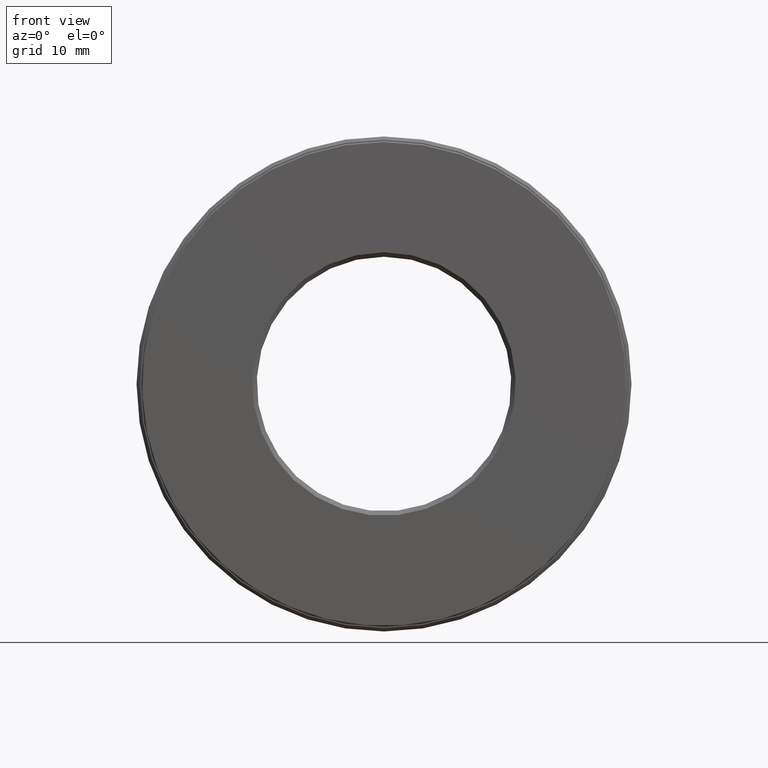
[diagram: clean part render]
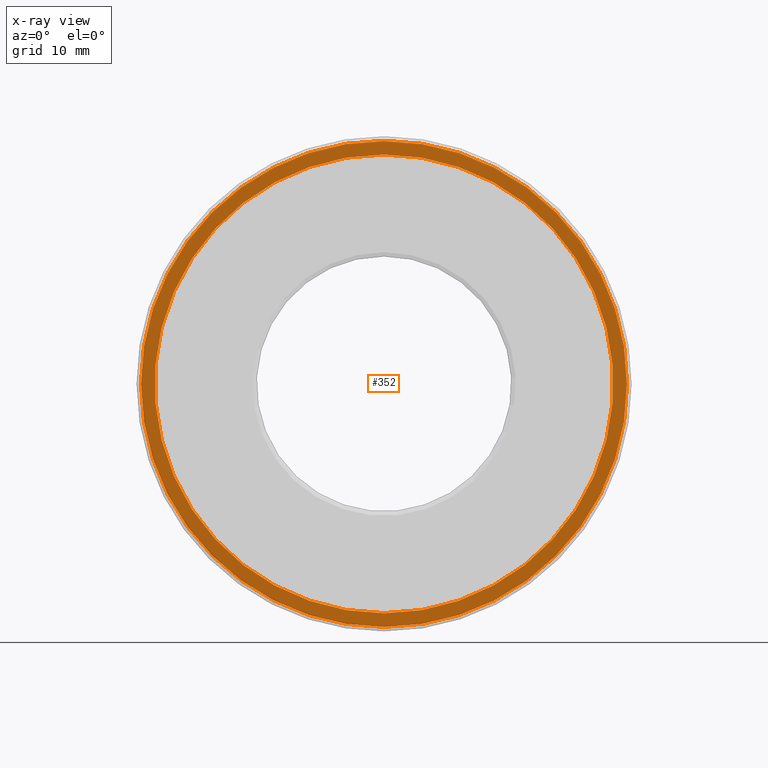
[diagram: x-ray — body ghosted, one internal face saturated and labeled with its STEP entity id]
A machine part, front view, then the same camera in x-ray: the body is ghosted and one INTERNAL B-rep face — a face not visible from any outside direction — is saturated and labeled: STEP entity #352.
In plain terms, the highlighted planar face has unit normal (-0, 1, 0).
Its self-contained STEP definition (entity closure, byte-faithful):
#13 = AXIS2_PLACEMENT_3D ( 'NONE', #291, #396, #445 ) ;
#57 = PLANE ( 'NONE',  #232 ) ;
#96 = DIRECTION ( 'NONE',  ( 0.0000000000000000000, 0.0000000000000000000, 1.000000000000000000 ) ) ;
#98 = CARTESIAN_POINT ( 'NONE',  ( 0.0000000000000000000, 0.9024999999999999700, 0.0000000000000000000 ) ) ;
#108 = CARTESIAN_POINT ( 'NONE',  ( 0.0000000000000000000, 0.9024999999999999700, 1.073750000000000000 ) ) ;
#116 = CARTESIAN_POINT ( 'NONE',  ( 0.0000000000000000000, 0.9024999999999999700, 1.013750000000000200 ) ) ;
#135 = CARTESIAN_POINT ( 'NONE',  ( 0.0000000000000000000, 0.9024999999999999700, 0.0000000000000000000 ) ) ;
#166 = ORIENTED_EDGE ( 'NONE', *, *, #347, .F. ) ;
#183 = AXIS2_PLACEMENT_3D ( 'NONE', #135, #277, #96 ) ;
#189 = VERTEX_POINT ( 'NONE', #108 ) ;
#190 = CIRCLE ( 'NONE', #183, 1.073750000000000000 ) ;
#232 = AXIS2_PLACEMENT_3D ( 'NONE', #98, #373, #413 ) ;
#277 = DIRECTION ( 'NONE',  ( -0.0000000000000000000, 1.000000000000000000, -0.0000000000000000000 ) ) ;
#291 = CARTESIAN_POINT ( 'NONE',  ( 0.0000000000000000000, 0.9024999999999999700, 0.0000000000000000000 ) ) ;
#347 = EDGE_CURVE ( 'NONE', #189, #189, #190, .T. ) ;
#352 = ADVANCED_FACE ( 'NONE', ( #506, #438 ), #57, .F. ) ;
#373 = DIRECTION ( 'NONE',  ( -0.0000000000000000000, 1.000000000000000000, 0.0000000000000000000 ) ) ;
#396 = DIRECTION ( 'NONE',  ( -0.0000000000000000000, 1.000000000000000000, -0.0000000000000000000 ) ) ;
#403 = EDGE_LOOP ( 'NONE', ( #166 ) ) ;
#413 = DIRECTION ( 'NONE',  ( 0.0000000000000000000, 0.0000000000000000000, 1.000000000000000000 ) ) ;
#438 = FACE_BOUND ( 'NONE', #601, .T. ) ;
#445 = DIRECTION ( 'NONE',  ( 0.0000000000000000000, 0.0000000000000000000, 1.000000000000000000 ) ) ;
#450 = VERTEX_POINT ( 'NONE', #116 ) ;
#488 = ORIENTED_EDGE ( 'NONE', *, *, #552, .T. ) ;
#506 = FACE_OUTER_BOUND ( 'NONE', #403, .T. ) ;
#542 = CIRCLE ( 'NONE', #13, 1.013750000000000200 ) ;
#552 = EDGE_CURVE ( 'NONE', #450, #450, #542, .T. ) ;
#601 = EDGE_LOOP ( 'NONE', ( #488 ) ) ;